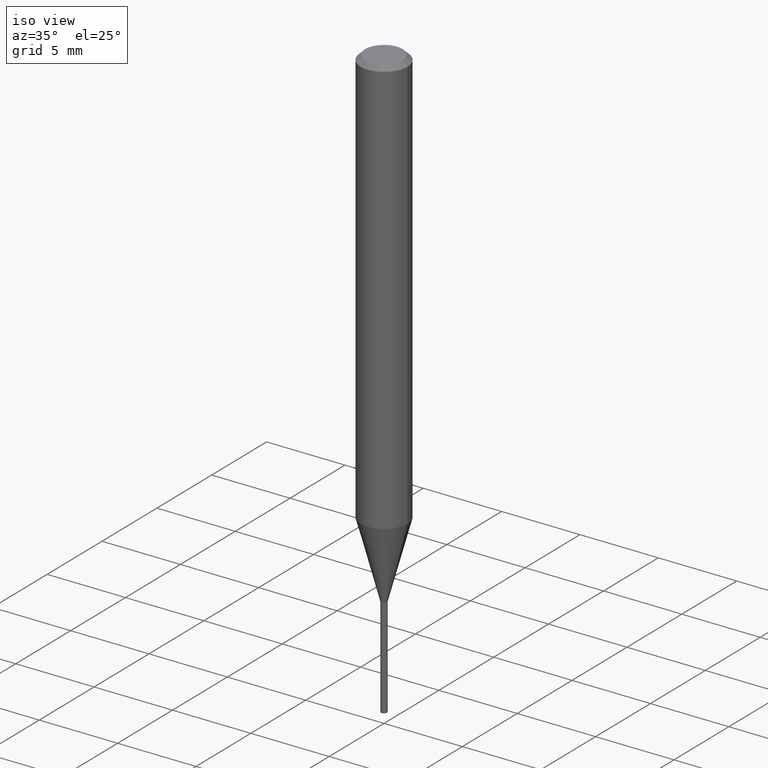
[diagram: clean part render]
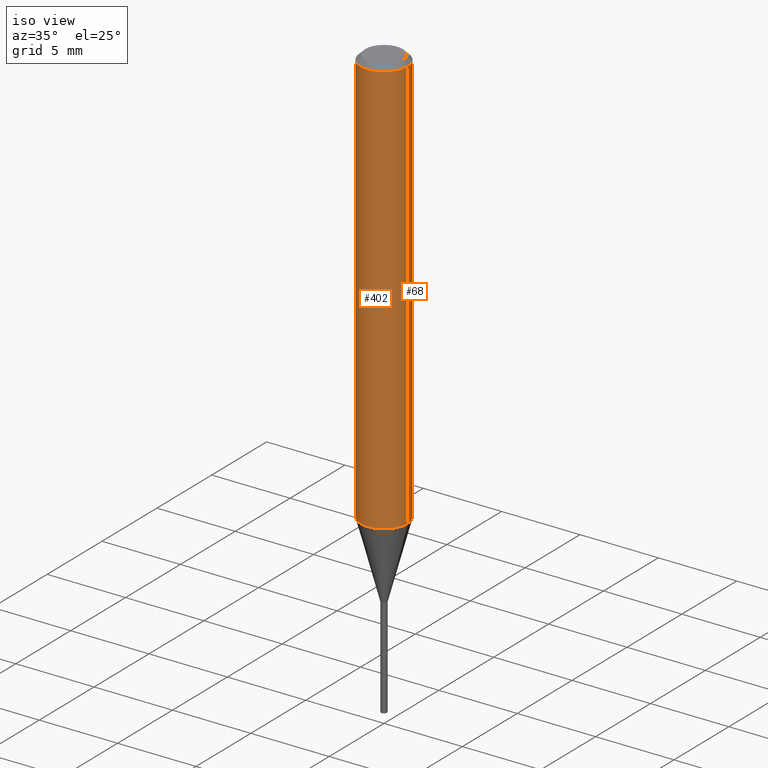
[diagram: same view with one multi-face feature highlighted, each face labeled with its STEP entity id]
A machine part, iso view. The highlighted faces form ONE feature: a constant-radius fillet chain: 2 tangent blend faces with common blend radius 1.4999 mm. The faces share edges in the B-rep.
Their STEP definitions:
[1] entity #402 (Cylinder):
#1 = ORIENTED_EDGE ( 'NONE', *, *, #65, .T. ) ;
#6 = DIRECTION ( 'NONE',  ( 1.000000000000000000, -6.982962677686266711E-15, 0.000000000000000000 ) ) ;
#9 = FACE_OUTER_BOUND ( 'NONE', #442, .T. ) ;
#17 = LINE ( 'NONE', #175, #343 ) ;
#31 = VERTEX_POINT ( 'NONE', #268 ) ;
#65 = EDGE_CURVE ( 'NONE', #472, #31, #422, .T. ) ;
#67 = CIRCLE ( 'NONE', #106, 0.05904999999999999832 ) ;
#70 = DIRECTION ( 'NONE',  ( -2.445468806185136597E-29, 3.491481338843145583E-15, 1.000000000000000000 ) ) ;
#106 = AXIS2_PLACEMENT_3D ( 'NONE', #144, #231, #306 ) ;
#126 = ORIENTED_EDGE ( 'NONE', *, *, #130, .T. ) ;
#130 = EDGE_CURVE ( 'NONE', #31, #399, #17, .T. ) ;
#142 = DIRECTION ( 'NONE',  ( -2.445468806185136877E-29, 3.491481338843145188E-15, 1.000000000000000000 ) ) ;
#144 = CARTESIAN_POINT ( 'NONE',  ( 2.888098660104663766E-31, -4.123439461173779647E-17, -0.01181000000000007044 ) ) ;
#160 = AXIS2_PLACEMENT_3D ( 'NONE', #245, #70, #6 ) ;
#166 = EDGE_CURVE ( 'NONE', #472, #448, #213, .T. ) ;
#168 = CARTESIAN_POINT ( 'NONE',  ( -0.05905000000000006077, 4.195754854663395916E-16, -2.904631170795524694E-30 ) ) ;
#174 = ORIENTED_EDGE ( 'NONE', *, *, #289, .F. ) ;
#175 = CARTESIAN_POINT ( 'NONE',  ( 0.05905000000000006077, -4.123439461173744764E-16, 2.879382386107503023E-30 ) ) ;
#187 = VECTOR ( 'NONE', #142, 39.37007874015748143 ) ;
#213 = LINE ( 'NONE', #168, #187 ) ;
#222 = DIRECTION ( 'NONE',  ( -2.445468806185136877E-29, 3.491481338843145188E-15, 1.000000000000000000 ) ) ;
#231 = DIRECTION ( 'NONE',  ( -2.445468806185136597E-29, 3.491481338843145583E-15, 1.000000000000000000 ) ) ;
#239 = CARTESIAN_POINT ( 'NONE',  ( 0.000000000000000000, 0.000000000000000000, 0.000000000000000000 ) ) ;
#245 = CARTESIAN_POINT ( 'NONE',  ( 2.566306220429153348E-29, -3.664005141150482080E-15, -1.049412780869824147 ) ) ;
#267 = DIRECTION ( 'NONE',  ( 1.000000000000000000, -6.982962677686266711E-15, 4.876176775795935793E-29 ) ) ;
#268 = CARTESIAN_POINT ( 'NONE',  ( 0.05905000000000011628, -4.076349087267857001E-15, -1.049412780869824147 ) ) ;
#276 = CYLINDRICAL_SURFACE ( 'NONE', #413, 0.05905000000000006077 ) ;
#289 = EDGE_CURVE ( 'NONE', #448, #399, #67, .T. ) ;
#291 = ORIENTED_EDGE ( 'NONE', *, *, #166, .F. ) ;
#306 = DIRECTION ( 'NONE',  ( 1.000000000000000000, -6.982962677686266711E-15, 0.000000000000000000 ) ) ;
#310 = CARTESIAN_POINT ( 'NONE',  ( 0.05904999999999999832, -4.535783407291118600E-16, -0.01181000000000007044 ) ) ;
#316 = CARTESIAN_POINT ( 'NONE',  ( -0.05905000000000011628, -3.244429655684142193E-15, -1.049412780869824147 ) ) ;
#343 = VECTOR ( 'NONE', #222, 39.37007874015748143 ) ;
#378 = DIRECTION ( 'NONE',  ( -2.445468806185136597E-29, 3.491481338843145583E-15, 1.000000000000000000 ) ) ;
#399 = VERTEX_POINT ( 'NONE', #310 ) ;
#402 = ADVANCED_FACE ( 'NONE', ( #9 ), #276, .T. ) ;
#413 = AXIS2_PLACEMENT_3D ( 'NONE', #239, #378, #267 ) ;
#420 = CARTESIAN_POINT ( 'NONE',  ( -0.05904999999999999832, -1.433044282414769623E-15, -0.01181000000000007044 ) ) ;
#422 = CIRCLE ( 'NONE', #160, 0.05905000000000011628 ) ;
#442 = EDGE_LOOP ( 'NONE', ( #291, #1, #126, #174 ) ) ;
#448 = VERTEX_POINT ( 'NONE', #420 ) ;
#472 = VERTEX_POINT ( 'NONE', #316 ) ;
[2] entity #68 (Cylinder):
#4 = AXIS2_PLACEMENT_3D ( 'NONE', #176, #329, #436 ) ;
#17 = LINE ( 'NONE', #175, #343 ) ;
#23 = ORIENTED_EDGE ( 'NONE', *, *, #192, .T. ) ;
#31 = VERTEX_POINT ( 'NONE', #268 ) ;
#38 = DIRECTION ( 'NONE',  ( 1.000000000000000000, -6.982962677686266711E-15, 0.000000000000000000 ) ) ;
#68 = ADVANCED_FACE ( 'NONE', ( #147 ), #303, .T. ) ;
#72 = CARTESIAN_POINT ( 'NONE',  ( 2.888098660104663766E-31, -4.123439461173779647E-17, -0.01181000000000007044 ) ) ;
#130 = EDGE_CURVE ( 'NONE', #31, #399, #17, .T. ) ;
#131 = ORIENTED_EDGE ( 'NONE', *, *, #166, .T. ) ;
#142 = DIRECTION ( 'NONE',  ( -2.445468806185136877E-29, 3.491481338843145188E-15, 1.000000000000000000 ) ) ;
#143 = ORIENTED_EDGE ( 'NONE', *, *, #130, .F. ) ;
#147 = FACE_OUTER_BOUND ( 'NONE', #171, .T. ) ;
#166 = EDGE_CURVE ( 'NONE', #472, #448, #213, .T. ) ;
#168 = CARTESIAN_POINT ( 'NONE',  ( -0.05905000000000006077, 4.195754854663395916E-16, -2.904631170795524694E-30 ) ) ;
#171 = EDGE_LOOP ( 'NONE', ( #23, #131, #354, #143 ) ) ;
#175 = CARTESIAN_POINT ( 'NONE',  ( 0.05905000000000006077, -4.123439461173744764E-16, 2.879382386107503023E-30 ) ) ;
#176 = CARTESIAN_POINT ( 'NONE',  ( 2.566306220429153348E-29, -3.664005141150482080E-15, -1.049412780869824147 ) ) ;
#185 = DIRECTION ( 'NONE',  ( -2.445468806185136597E-29, 3.491481338843145583E-15, 1.000000000000000000 ) ) ;
#187 = VECTOR ( 'NONE', #142, 39.37007874015748143 ) ;
#192 = EDGE_CURVE ( 'NONE', #31, #472, #404, .T. ) ;
#213 = LINE ( 'NONE', #168, #187 ) ;
#222 = DIRECTION ( 'NONE',  ( -2.445468806185136877E-29, 3.491481338843145188E-15, 1.000000000000000000 ) ) ;
#226 = AXIS2_PLACEMENT_3D ( 'NONE', #72, #369, #38 ) ;
#268 = CARTESIAN_POINT ( 'NONE',  ( 0.05905000000000011628, -4.076349087267857001E-15, -1.049412780869824147 ) ) ;
#273 = CIRCLE ( 'NONE', #226, 0.05904999999999999832 ) ;
#300 = AXIS2_PLACEMENT_3D ( 'NONE', #455, #185, #464 ) ;
#303 = CYLINDRICAL_SURFACE ( 'NONE', #300, 0.05905000000000006077 ) ;
#310 = CARTESIAN_POINT ( 'NONE',  ( 0.05904999999999999832, -4.535783407291118600E-16, -0.01181000000000007044 ) ) ;
#316 = CARTESIAN_POINT ( 'NONE',  ( -0.05905000000000011628, -3.244429655684142193E-15, -1.049412780869824147 ) ) ;
#329 = DIRECTION ( 'NONE',  ( -2.445468806185136597E-29, 3.491481338843145583E-15, 1.000000000000000000 ) ) ;
#343 = VECTOR ( 'NONE', #222, 39.37007874015748143 ) ;
#354 = ORIENTED_EDGE ( 'NONE', *, *, #359, .F. ) ;
#359 = EDGE_CURVE ( 'NONE', #399, #448, #273, .T. ) ;
#369 = DIRECTION ( 'NONE',  ( -2.445468806185136597E-29, 3.491481338843145583E-15, 1.000000000000000000 ) ) ;
#399 = VERTEX_POINT ( 'NONE', #310 ) ;
#404 = CIRCLE ( 'NONE', #4, 0.05905000000000011628 ) ;
#420 = CARTESIAN_POINT ( 'NONE',  ( -0.05904999999999999832, -1.433044282414769623E-15, -0.01181000000000007044 ) ) ;
#436 = DIRECTION ( 'NONE',  ( 1.000000000000000000, -6.982962677686266711E-15, 0.000000000000000000 ) ) ;
#448 = VERTEX_POINT ( 'NONE', #420 ) ;
#455 = CARTESIAN_POINT ( 'NONE',  ( 0.000000000000000000, 0.000000000000000000, 0.000000000000000000 ) ) ;
#464 = DIRECTION ( 'NONE',  ( 1.000000000000000000, -6.982962677686266711E-15, 4.876176775795935793E-29 ) ) ;
#472 = VERTEX_POINT ( 'NONE', #316 ) ;